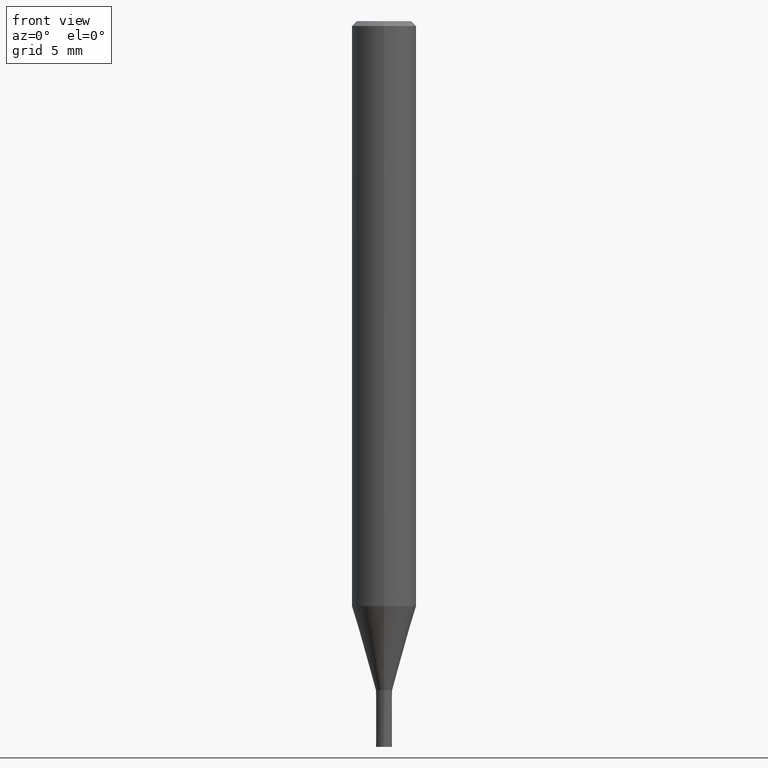
[diagram: clean part render]
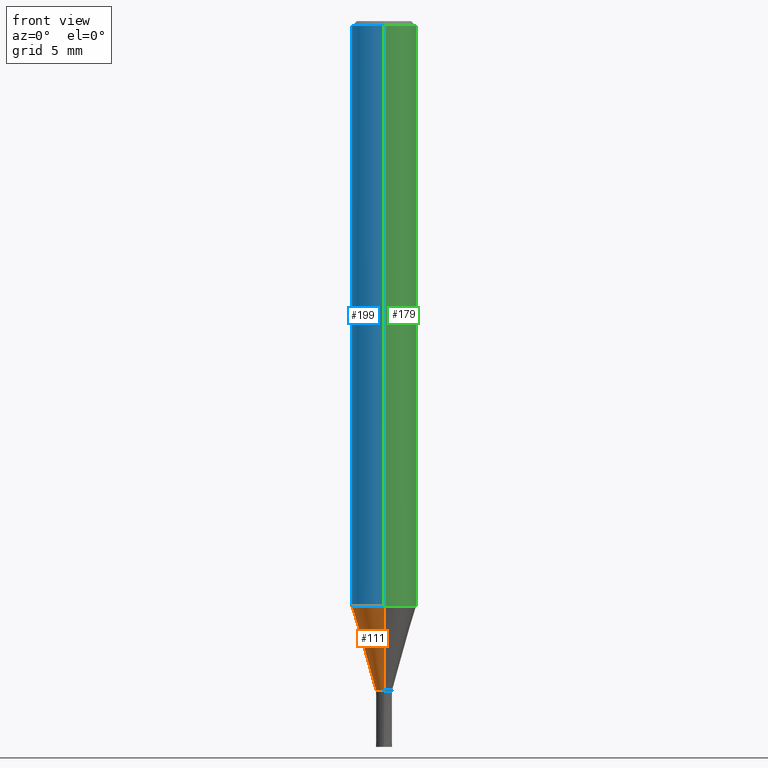
[diagram: same view with three faces highlighted in distinct colors, each labeled with its STEP entity id]
A machine part, front view with three faces highlighted in distinct colors.
Their STEP definitions:

[orange] entity #111 — the highlighted conical surface has half-angle 16 deg.
#111=ADVANCED_FACE('',(#282),#283,.T.);
#115=VERTEX_POINT('',#287);
#157=VERTEX_POINT('',#333);
#169=VERTEX_POINT('',#346);
#181=EDGE_CURVE('',#157,#115,#361,.T.);
#207=EDGE_CURVE('',#115,#217,#394,.T.);
#217=VERTEX_POINT('',#406);
#229=EDGE_CURVE('',#217,#169,#420,.T.);
#257=EDGE_CURVE('',#157,#169,#450,.T.);
#282=FACE_OUTER_BOUND('',#468,.T.);
#283=CONICAL_SURFACE('',#469,1.24995,0.279258842899557);
#287=CARTESIAN_POINT('',(2.44915147732706E-016,-1.99995,-36.269));
#333=CARTESIAN_POINT('',(6.12241946593498E-017,-0.49995,-41.5));
#346=CARTESIAN_POINT('',(0.0,0.49995,-41.5));
#361=LINE('',#562,#563);
#394=CIRCLE('',#604,1.99995);
#406=CARTESIAN_POINT('',(0.0,1.99995,-36.269));
#420=LINE('',#636,#637);
#450=CIRCLE('',#678,0.49995);
#468=EDGE_LOOP('',(#687,#688,#689,#690));
#469=AXIS2_PLACEMENT_3D('',#691,#692,#693);
#562=CARTESIAN_POINT('',(1.53069671196028E-016,-1.24995,-38.8845));
#563=VECTOR('',#775,1.0);
#604=AXIS2_PLACEMENT_3D('',#827,#828,#829);
#636=CARTESIAN_POINT('',(-1.53069671196028E-016,1.24995,-38.8845));
#637=VECTOR('',#858,1.0);
#678=AXIS2_PLACEMENT_3D('',#897,#898,#899);
#687=ORIENTED_EDGE('',*,*,#229,.T.);
#688=ORIENTED_EDGE('',*,*,#257,.F.);
#689=ORIENTED_EDGE('',*,*,#181,.T.);
#690=ORIENTED_EDGE('',*,*,#207,.T.);
#691=CARTESIAN_POINT('',(0.0,0.0,-38.8845));
#692=DIRECTION('',(-0.0,-0.0,1.0));
#693=DIRECTION('',(0.0,1.0,0.0));
#775=DIRECTION('',(3.37554511665357E-017,-0.275643279664314,0.961259997282682));
#827=CARTESIAN_POINT('',(0.0,0.0,-36.269));
#828=DIRECTION('',(0.0,0.0,-1.0));
#829=DIRECTION('',(0.0,1.0,0.0));
#858=DIRECTION('',(3.37554511665357E-017,-0.275643279664314,-0.961259997282682));
#897=CARTESIAN_POINT('',(0.0,0.0,-41.5));
#898=DIRECTION('',(0.0,0.0,-1.0));
#899=DIRECTION('',(0.0,1.0,0.0));

[blue] entity #199 — the highlighted cylindrical surface (edge-blend (fillet) strip) has radius 2 mm, axis along (-0, -0, 1).
#119=VERTEX_POINT('',#292);
#121=VERTEX_POINT('',#294);
#137=EDGE_CURVE('',#201,#187,#311,.T.);
#177=EDGE_CURVE('',#119,#187,#356,.T.);
#187=VERTEX_POINT('',#368);
#195=EDGE_CURVE('',#201,#121,#379,.T.);
#199=ADVANCED_FACE('',(#383),#384,.T.);
#201=VERTEX_POINT('',#386);
#241=EDGE_CURVE('',#121,#119,#432,.T.);
#292=CARTESIAN_POINT('',(0.0,2.0,-0.299999999999997));
#294=CARTESIAN_POINT('',(2.44921270764475E-016,-2.0,-0.299999999999997));
#311=CIRCLE('',#501,2.0);
#356=LINE('',#555,#556);
#368=CARTESIAN_POINT('',(0.0,2.0,-36.269));
#379=LINE('',#585,#586);
#383=FACE_OUTER_BOUND('',#591,.T.);
#384=CYLINDRICAL_SURFACE('',#592,2.0);
#386=CARTESIAN_POINT('',(2.44921270764475E-016,-2.0,-36.269));
#432=CIRCLE('',#652,2.0);
#501=AXIS2_PLACEMENT_3D('',#717,#718,#719);
#555=CARTESIAN_POINT('',(-2.44921270764475E-016,2.0,-18.2845));
#556=VECTOR('',#766,1.0);
#585=CARTESIAN_POINT('',(2.44921270764475E-016,-2.0,-18.2845));
#586=VECTOR('',#804,1.0);
#591=EDGE_LOOP('',(#809,#810,#811,#812));
#592=AXIS2_PLACEMENT_3D('',#813,#814,#815);
#652=AXIS2_PLACEMENT_3D('',#869,#870,#871);
#717=CARTESIAN_POINT('',(0.0,0.0,-36.269));
#718=DIRECTION('',(0.0,0.0,-1.0));
#719=DIRECTION('',(0.0,1.0,0.0));
#766=DIRECTION('',(0.0,0.0,-1.0));
#804=DIRECTION('',(-0.0,-0.0,1.0));
#809=ORIENTED_EDGE('',*,*,#177,.T.);
#810=ORIENTED_EDGE('',*,*,#137,.F.);
#811=ORIENTED_EDGE('',*,*,#195,.T.);
#812=ORIENTED_EDGE('',*,*,#241,.T.);
#813=CARTESIAN_POINT('',(0.0,0.0,-18.2845));
#814=DIRECTION('',(-0.0,-0.0,1.0));
#815=DIRECTION('',(0.0,1.0,0.0));
#869=CARTESIAN_POINT('',(0.0,0.0,-0.299999999999997));
#870=DIRECTION('',(0.0,0.0,-1.0));
#871=DIRECTION('',(0.0,1.0,0.0));

[green] entity #179 — the highlighted cylindrical surface (edge-blend (fillet) strip) has radius 2 mm, axis along (-0, -0, 1).
#119=VERTEX_POINT('',#292);
#121=VERTEX_POINT('',#294);
#177=EDGE_CURVE('',#119,#187,#356,.T.);
#179=ADVANCED_FACE('',(#358),#359,.T.);
#187=VERTEX_POINT('',#368);
#195=EDGE_CURVE('',#201,#121,#379,.T.);
#201=VERTEX_POINT('',#386);
#245=EDGE_CURVE('',#187,#201,#437,.T.);
#247=EDGE_CURVE('',#119,#121,#439,.T.);
#292=CARTESIAN_POINT('',(0.0,2.0,-0.299999999999997));
#294=CARTESIAN_POINT('',(2.44921270764475E-016,-2.0,-0.299999999999997));
#356=LINE('',#555,#556);
#358=FACE_OUTER_BOUND('',#558,.T.);
#359=CYLINDRICAL_SURFACE('',#559,2.0);
#368=CARTESIAN_POINT('',(0.0,2.0,-36.269));
#379=LINE('',#585,#586);
#386=CARTESIAN_POINT('',(2.44921270764475E-016,-2.0,-36.269));
#437=CIRCLE('',#658,2.0);
#439=CIRCLE('',#661,2.0);
#555=CARTESIAN_POINT('',(-2.44921270764475E-016,2.0,-18.2845));
#556=VECTOR('',#766,1.0);
#558=EDGE_LOOP('',(#768,#769,#770,#771));
#559=AXIS2_PLACEMENT_3D('',#772,#773,#774);
#585=CARTESIAN_POINT('',(2.44921270764475E-016,-2.0,-18.2845));
#586=VECTOR('',#804,1.0);
#658=AXIS2_PLACEMENT_3D('',#878,#879,#880);
#661=AXIS2_PLACEMENT_3D('',#881,#882,#883);
#766=DIRECTION('',(0.0,0.0,-1.0));
#768=ORIENTED_EDGE('',*,*,#177,.F.);
#769=ORIENTED_EDGE('',*,*,#247,.T.);
#770=ORIENTED_EDGE('',*,*,#195,.F.);
#771=ORIENTED_EDGE('',*,*,#245,.F.);
#772=CARTESIAN_POINT('',(0.0,0.0,-18.2845));
#773=DIRECTION('',(-0.0,-0.0,1.0));
#774=DIRECTION('',(0.0,1.0,0.0));
#804=DIRECTION('',(-0.0,-0.0,1.0));
#878=CARTESIAN_POINT('',(0.0,0.0,-36.269));
#879=DIRECTION('',(0.0,0.0,-1.0));
#880=DIRECTION('',(0.0,1.0,0.0));
#881=CARTESIAN_POINT('',(0.0,0.0,-0.299999999999997));
#882=DIRECTION('',(0.0,0.0,-1.0));
#883=DIRECTION('',(0.0,1.0,0.0));